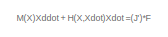
[diagram: root canvas - part 1/10, top center region]
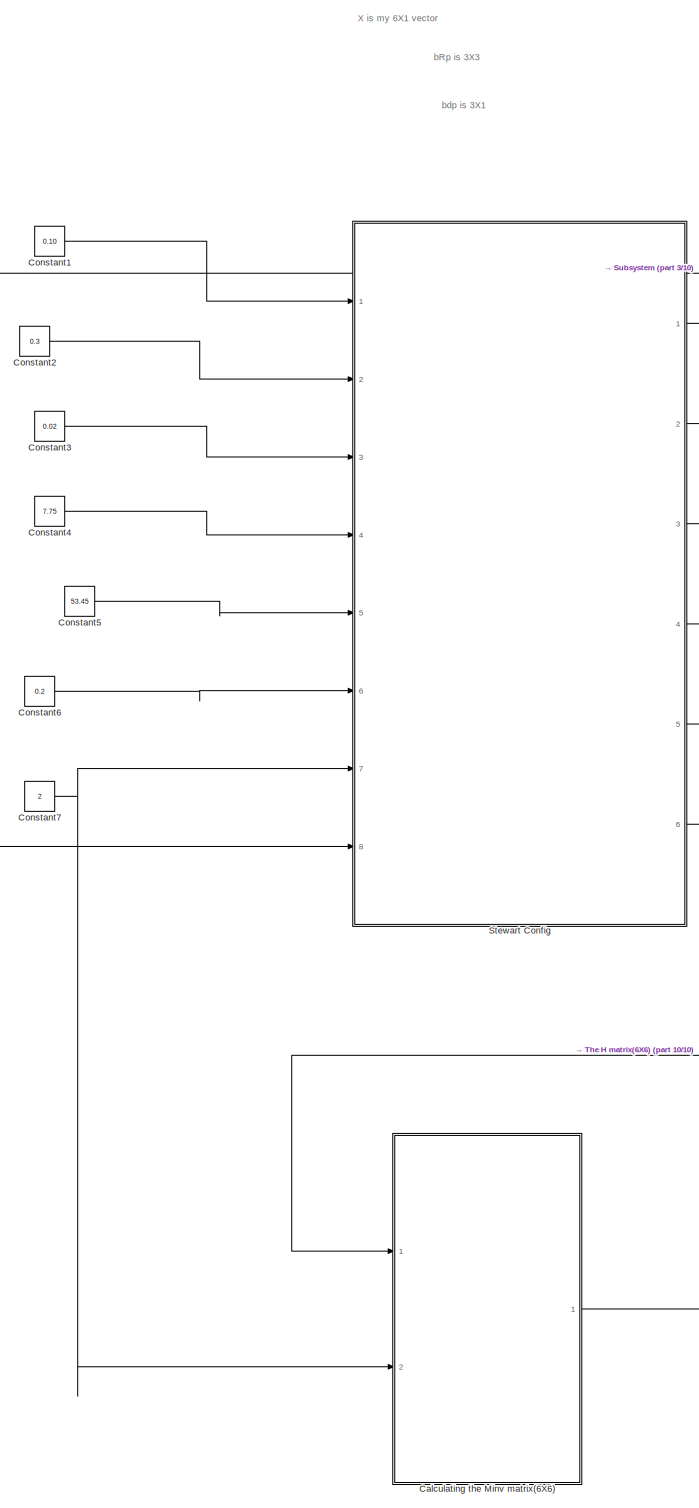
[diagram: root canvas - part 2/10, middle left region]
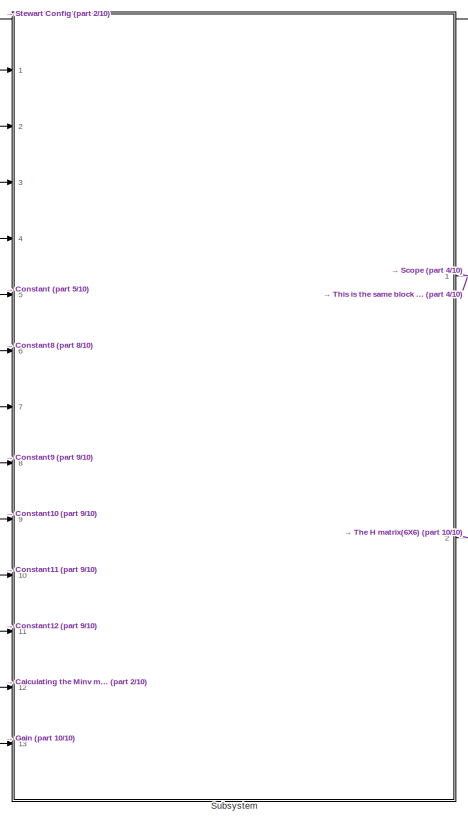
[diagram: root canvas - part 3/10, middle right region]
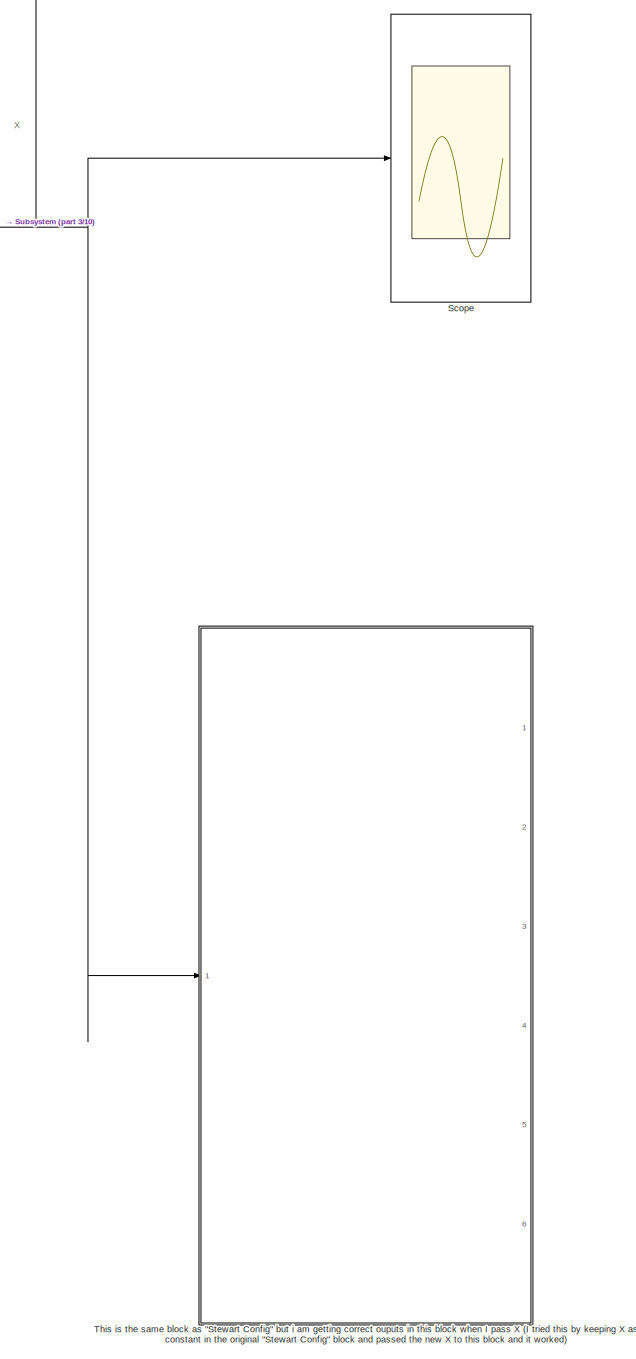
[diagram: root canvas - part 4/10, middle right region]
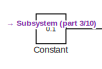
[diagram: root canvas - part 5/10, top center region]
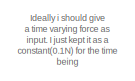
[diagram: root canvas - part 6/10, top left region]
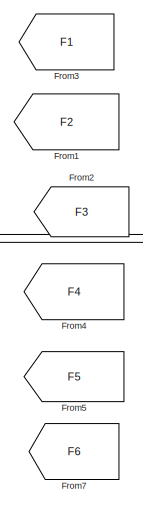
[diagram: root canvas - part 7/10, central region]
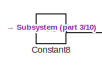
[diagram: root canvas - part 8/10, top center region]
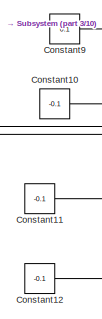
[diagram: root canvas - part 9/10, central region]
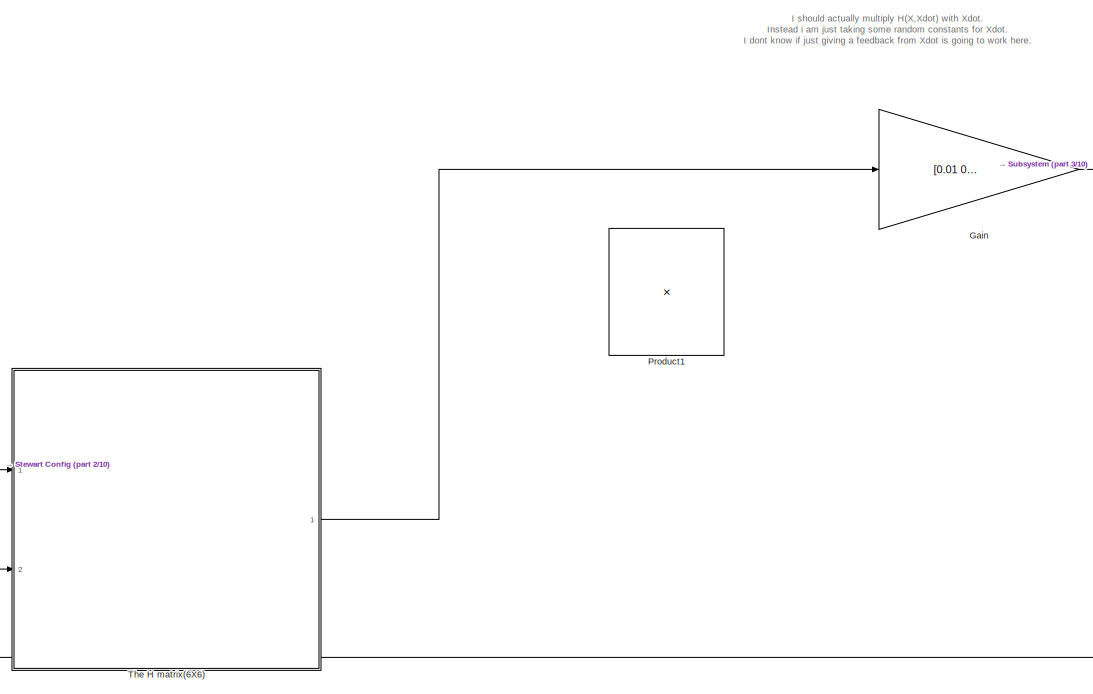
[diagram: root canvas - part 10/10, bottom center region]
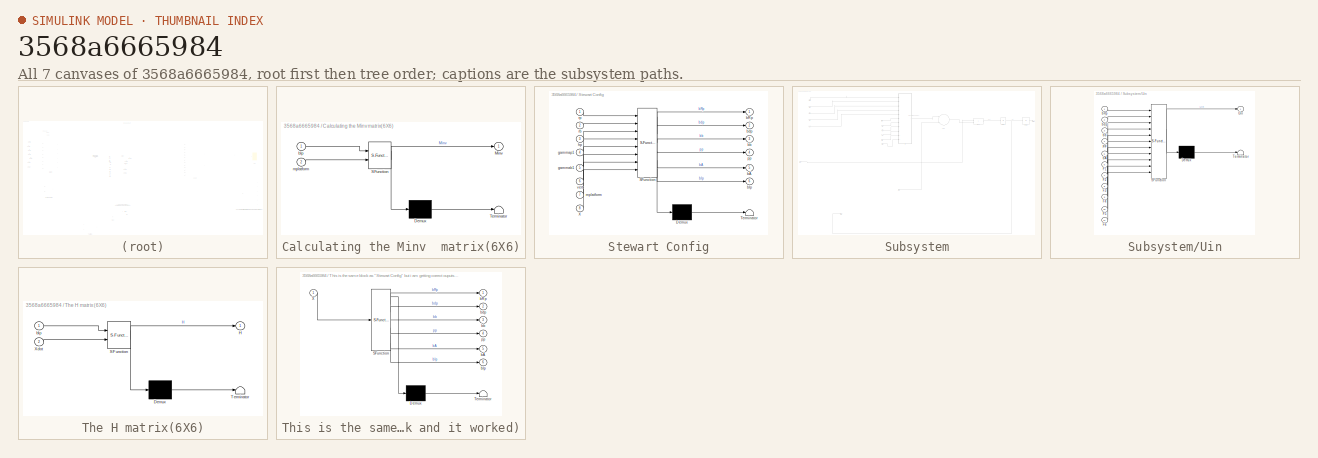
[diagram: thumbnail index - all 7 canvases of the model, root first then tree order]
MODEL slx_3568a6665984
KIND model
CONFIG AbsTol = auto
CONFIG FixedStep = auto
CONFIG MaxStep = auto
CONFIG MinStep = auto
CONFIG RelTol = 1e-3
CONFIG SampleTimeConstraint = Unconstrained
CONFIG Solver = ode45
CONFIG SolverMode = Auto
CONFIG SolverName = ode45
CONFIG StartTime = 0.0
CONFIG StopTime = 10.0
BLOCK [SubSystem] Calculating the Minv  matrix(6X6)
  ErrorFcn = Stateflow.Translate.translate
  PermitHierarchicalResolution = ExplicitOnly
  Ports = [2, 1]
  RequestExecContextInheritance = off
  SFBlockType = MATLAB Function
  TreatAsAtomicUnit = on
BLOCK [Demux] Calculating the Minv  matrix(6X6)/ Demux 
  Outputs = 1
  Ports = [1, 1]
BLOCK [S-Function] Calculating the Minv  matrix(6X6)/ SFunction 
  EnableBusSupport = on
  FunctionName = sf_sfun
  PortCounts = [2 2]
  Ports = [2, 2]
  Tag = Stateflow S-Function June30Simulink 4
BLOCK [Terminator] Calculating the Minv  matrix(6X6)/ Terminator 
BLOCK [Outport] Calculating the Minv  matrix(6X6)/Minv
  IconDisplay = Port number
BLOCK [Inport] Calculating the Minv  matrix(6X6)/bIp
  IconDisplay = Port number
BLOCK [Inport] Calculating the Minv  matrix(6X6)/mplatform
  IconDisplay = Port number
  Port = 2
BLOCK [Constant] Constant
  Value = 0.1
BLOCK [Constant] Constant1
  Value = 0.10
BLOCK [Constant] Constant10
  Value = -0.1
BLOCK [Constant] Constant11
  Value = -0.1
BLOCK [Constant] Constant12
  Value = -0.1
BLOCK [Constant] Constant2
  Value = 0.3
BLOCK [Constant] Constant3
  Value = 0.02
BLOCK [Constant] Constant4
  Value = 7.75
BLOCK [Constant] Constant5
  Value = 53.45
BLOCK [Constant] Constant6
  Value = 0.2
BLOCK [Constant] Constant7
  Value = 2
BLOCK [Constant] Constant8
  Value = 0.1
BLOCK [Constant] Constant9
  Value = 0.1
BLOCK [From] From1
  CloseFcn = tagdialog Close
  GotoTag = F2
BLOCK [From] From2
  CloseFcn = tagdialog Close
  GotoTag = F3
BLOCK [From] From3
  CloseFcn = tagdialog Close
  GotoTag = F1
BLOCK [From] From4
  CloseFcn = tagdialog Close
  GotoTag = F4
BLOCK [From] From5
  CloseFcn = tagdialog Close
  GotoTag = F5
BLOCK [From] From7
  CloseFcn = tagdialog Close
  GotoTag = F6
BLOCK [Gain] Gain
  Gain = [0.01 0.00 0 0.1 0.05 0.15]'
  Multiplication = Matrix(u*K)
  OutDataTypeStr = Inherit: Inherit via internal rule
  ParamDataTypeStr = Inherit: Inherit via internal rule
  SaturateOnIntegerOverflow = off
BLOCK [Product] Product1
  InputSameDT = off
  Multiplication = Matrix(*)
  OutDataTypeStr = Inherit: Inherit via internal rule
  Ports = [2, 1]
  RndMeth = Floor
  SaturateOnIntegerOverflow = off
BLOCK [Scope] Scope
  Floating = off
  NumInputPorts = 1
  Ports = [1]
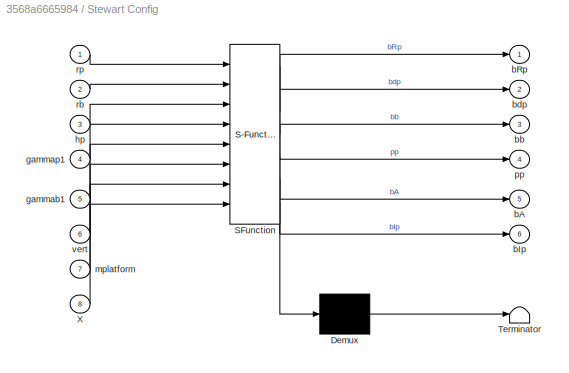
BLOCK [SubSystem] Stewart Config
  ErrorFcn = Stateflow.Translate.translate
  PermitHierarchicalResolution = ExplicitOnly
  Ports = [8, 6]
  RequestExecContextInheritance = off
  SFBlockType = MATLAB Function
  TreatAsAtomicUnit = on
BLOCK [Demux] Stewart Config/ Demux 
  Outputs = 1
  Ports = [1, 1]
BLOCK [S-Function] Stewart Config/ SFunction 
  EnableBusSupport = on
  FunctionName = sf_sfun
  PortCounts = [8 7]
  Ports = [8, 7]
  Tag = Stateflow S-Function June30Simulink 1
BLOCK [Terminator] Stewart Config/ Terminator 
BLOCK [Inport] Stewart Config/X
  IconDisplay = Port number
  Port = 8
BLOCK [Outport] Stewart Config/bA
  IconDisplay = Port number
  Port = 5
BLOCK [Outport] Stewart Config/bIp
  IconDisplay = Port number
  Port = 6
BLOCK [Outport] Stewart Config/bRp
  IconDisplay = Port number
BLOCK [Outport] Stewart Config/bb
  IconDisplay = Port number
  Port = 3
BLOCK [Outport] Stewart Config/bdp
  IconDisplay = Port number
  Port = 2
BLOCK [Inport] Stewart Config/gammab1
  IconDisplay = Port number
  Port = 5
BLOCK [Inport] Stewart Config/gammap1
  IconDisplay = Port number
  Port = 4
BLOCK [Inport] Stewart Config/hp
  IconDisplay = Port number
  Port = 3
BLOCK [Inport] Stewart Config/mplatform
  IconDisplay = Port number
  Port = 7
BLOCK [Outport] Stewart Config/pp
  IconDisplay = Port number
  Port = 4
BLOCK [Inport] Stewart Config/rb
  IconDisplay = Port number
  Port = 2
BLOCK [Inport] Stewart Config/rp
  IconDisplay = Port number
BLOCK [Inport] Stewart Config/vert
  IconDisplay = Port number
  Port = 6
BLOCK [SubSystem] Subsystem
  Ports = [13, 2]
  RequestExecContextInheritance = off
BLOCK [Inport] Subsystem/F1
  IconDisplay = Port number
  Port = 5
BLOCK [Inport] Subsystem/F2
  IconDisplay = Port number
  Port = 6
BLOCK [Inport] Subsystem/F3
  IconDisplay = Port number
  Port = 8
BLOCK [Inport] Subsystem/F4
  IconDisplay = Port number
  Port = 9
BLOCK [Inport] Subsystem/F5
  IconDisplay = Port number
  Port = 10
BLOCK [Inport] Subsystem/F6
  IconDisplay = Port number
  Port = 11
BLOCK [Inport] Subsystem/In12
  IconDisplay = Port number
  Port = 12
BLOCK [Inport] Subsystem/In13
  IconDisplay = Port number
  Port = 13
BLOCK [Integrator] Subsystem/Integrator
  Ports = [1, 1]
BLOCK [Integrator] Subsystem/Integrator1
  Ports = [1, 1]
BLOCK [Product] Subsystem/Product
  InputSameDT = off
  Multiplication = Matrix(*)
  OutDataTypeStr = Inherit: Inherit via internal rule
  Ports = [2, 1]
  RndMeth = Floor
  SaturateOnIntegerOverflow = off
BLOCK [Sum] Subsystem/Sum
  InputSameDT = off
  Inputs = |++
  OutDataTypeStr = Inherit: Inherit via internal rule
  Ports = [2, 1]
  SaturateOnIntegerOverflow = off
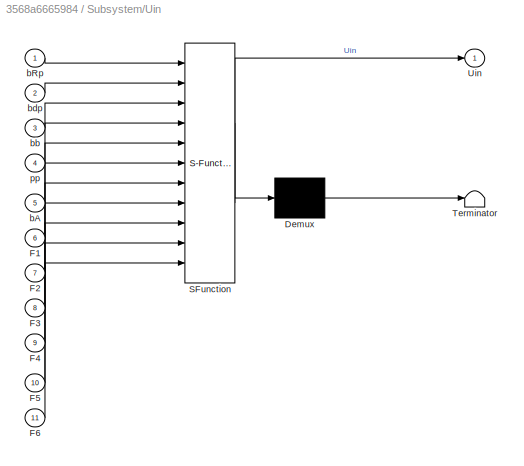
BLOCK [SubSystem] Subsystem/Uin
  ErrorFcn = Stateflow.Translate.translate
  PermitHierarchicalResolution = ExplicitOnly
  Ports = [11, 1]
  RequestExecContextInheritance = off
  SFBlockType = MATLAB Function
  TreatAsAtomicUnit = on
BLOCK [Demux] Subsystem/Uin/ Demux 
  Outputs = 1
  Ports = [1, 1]
BLOCK [S-Function] Subsystem/Uin/ SFunction 
  EnableBusSupport = on
  FunctionName = sf_sfun
  PortCounts = [11 2]
  Ports = [11, 2]
  Tag = Stateflow S-Function June30Simulink 3
BLOCK [Terminator] Subsystem/Uin/ Terminator 
BLOCK [Inport] Subsystem/Uin/F1
  IconDisplay = Port number
  Port = 6
BLOCK [Inport] Subsystem/Uin/F2
  IconDisplay = Port number
  Port = 7
BLOCK [Inport] Subsystem/Uin/F3
  IconDisplay = Port number
  Port = 8
BLOCK [Inport] Subsystem/Uin/F4
  IconDisplay = Port number
  Port = 9
BLOCK [Inport] Subsystem/Uin/F5
  IconDisplay = Port number
  Port = 10
BLOCK [Inport] Subsystem/Uin/F6
  IconDisplay = Port number
  Port = 11
BLOCK [Outport] Subsystem/Uin/Uin
  IconDisplay = Port number
BLOCK [Inport] Subsystem/Uin/bA
  IconDisplay = Port number
  Port = 5
BLOCK [Inport] Subsystem/Uin/bRp
  IconDisplay = Port number
BLOCK [Inport] Subsystem/Uin/bb
  IconDisplay = Port number
  Port = 3
BLOCK [Inport] Subsystem/Uin/bdp
  IconDisplay = Port number
  Port = 2
BLOCK [Inport] Subsystem/Uin/pp
  IconDisplay = Port number
  Port = 4
BLOCK [Outport] Subsystem/X(states)
  IconDisplay = Port number
BLOCK [Outport] Subsystem/Xdot
  IconDisplay = Port number
  Port = 2
BLOCK [Inport] Subsystem/bA
  IconDisplay = Port number
  Port = 7
BLOCK [Inport] Subsystem/bRp
  IconDisplay = Port number
BLOCK [Inport] Subsystem/bb
  IconDisplay = Port number
  Port = 3
BLOCK [Inport] Subsystem/bdp
  IconDisplay = Port number
  Port = 2
BLOCK [Inport] Subsystem/pp
  IconDisplay = Port number
  Port = 4
BLOCK [SubSystem] The H matrix(6X6)
  ErrorFcn = Stateflow.Translate.translate
  PermitHierarchicalResolution = ExplicitOnly
  Ports = [2, 1]
  RequestExecContextInheritance = off
  SFBlockType = MATLAB Function
  TreatAsAtomicUnit = on
BLOCK [Demux] The H matrix(6X6)/ Demux 
  Outputs = 1
  Ports = [1, 1]
BLOCK [S-Function] The H matrix(6X6)/ SFunction 
  EnableBusSupport = on
  FunctionName = sf_sfun
  PortCounts = [2 2]
  Ports = [2, 2]
  Tag = Stateflow S-Function June30Simulink 5
BLOCK [Terminator] The H matrix(6X6)/ Terminator 
BLOCK [Outport] The H matrix(6X6)/H
  IconDisplay = Port number
BLOCK [Inport] The H matrix(6X6)/Xdot
  IconDisplay = Port number
  Port = 2
BLOCK [Inport] The H matrix(6X6)/bIp
  IconDisplay = Port number
BLOCK [SubSystem] This is the same block as "Stewart Config" but i am getting correct ouputs in this block when I pass X (I tried this by keeping X as constant in the original "Stewart Config" block and passed the new X to this block and it worked)
  ErrorFcn = Stateflow.Translate.translate
  PermitHierarchicalResolution = ExplicitOnly
  Ports = [1, 6]
  RequestExecContextInheritance = off
  SFBlockType = MATLAB Function
  TreatAsAtomicUnit = on
BLOCK [Demux] This is the same block as "Stewart Config" but i am getting correct ouputs in this block when I pass X (I tried this by keeping X as constant in the original "Stewart Config" block and passed the new X to this block and it worked)/ Demux 
  Outputs = 1
  Ports = [1, 1]
BLOCK [S-Function] This is the same block as "Stewart Config" but i am getting correct ouputs in this block when I pass X (I tried this by keeping X as constant in the original "Stewart Config" block and passed the new X to this block and it worked)/ SFunction 
  EnableBusSupport = on
  FunctionName = sf_sfun
  PortCounts = [1 7]
  Ports = [1, 7]
  Tag = Stateflow S-Function June30Simulink 8
BLOCK [Terminator] This is the same block as "Stewart Config" but i am getting correct ouputs in this block when I pass X (I tried this by keeping X as constant in the original "Stewart Config" block and passed the new X to this block and it worked)/ Terminator 
BLOCK [Inport] This is the same block as "Stewart Config" but i am getting correct ouputs in this block when I pass X (I tried this by keeping X as constant in the original "Stewart Config" block and passed the new X to this block and it worked)/X
  IconDisplay = Port number
BLOCK [Outport] This is the same block as "Stewart Config" but i am getting correct ouputs in this block when I pass X (I tried this by keeping X as constant in the original "Stewart Config" block and passed the new X to this block and it worked)/bA
  IconDisplay = Port number
  Port = 5
BLOCK [Outport] This is the same block as "Stewart Config" but i am getting correct ouputs in this block when I pass X (I tried this by keeping X as constant in the original "Stewart Config" block and passed the new X to this block and it worked)/bIp
  IconDisplay = Port number
  Port = 6
BLOCK [Outport] This is the same block as "Stewart Config" but i am getting correct ouputs in this block when I pass X (I tried this by keeping X as constant in the original "Stewart Config" block and passed the new X to this block and it worked)/bRp
  IconDisplay = Port number
BLOCK [Outport] This is the same block as "Stewart Config" but i am getting correct ouputs in this block when I pass X (I tried this by keeping X as constant in the original "Stewart Config" block and passed the new X to this block and it worked)/bb
  IconDisplay = Port number
  Port = 3
BLOCK [Outport] This is the same block as "Stewart Config" but i am getting correct ouputs in this block when I pass X (I tried this by keeping X as constant in the original "Stewart Config" block and passed the new X to this block and it worked)/bdp
  IconDisplay = Port number
  Port = 2
BLOCK [Outport] This is the same block as "Stewart Config" but i am getting correct ouputs in this block when I pass X (I tried this by keeping X as constant in the original "Stewart Config" block and passed the new X to this block and it worked)/pp
  IconDisplay = Port number
  Port = 4
ANNOTATION (root): Ideally i should give a time varying force as input. I just kept it as a constant(0.1N) for the time being
ANNOTATION (root): I should actually multiply H(X,Xdot) with Xdot. Instead i am just taking some random constants for Xdot. I dont know if just giving a feedback from Xdot is going to work here.
ANNOTATION (root): M(X)Xddot + H(X,Xdot)Xdot =(J')*F
ANNOTATION (root): X is my 6X1 vector
ANNOTATION (root): X
ANNOTATION (root): bRp is 3X3
ANNOTATION (root): bdp is 3X1
ANNOTATION Subsystem: Sum
ANNOTATION Subsystem: This is my (J')*F : ( J is 6X6 and F is 6X1)
ANNOTATION Subsystem: Xddot
ANNOTATION Subsystem: Xdot
LINE Calculating the Minv  matrix(6X6):1 -> Subsystem:12
LINE Constant10:1 -> Subsystem:9
LINE Constant11:1 -> Subsystem:10
LINE Constant12:1 -> Subsystem:11
LINE Constant1:1 -> Stewart Config:1
LINE Constant2:1 -> Stewart Config:2
LINE Constant3:1 -> Stewart Config:3
LINE Constant4:1 -> Stewart Config:4
LINE Constant5:1 -> Stewart Config:5
LINE Constant6:1 -> Stewart Config:6
NET Constant7:1 -> Calculating the Minv  matrix(6X6):2, Stewart Config:7
LINE Constant8:1 -> Subsystem:6
LINE Constant9:1 -> Subsystem:8
LINE Constant:1 -> Subsystem:5
LINE Gain:1 -> Subsystem:13
LINE Stewart Config:1 -> Subsystem:1
LINE Stewart Config:2 -> Subsystem:2
LINE Stewart Config:3 -> Subsystem:3
LINE Stewart Config:4 -> Subsystem:4
LINE Stewart Config:5 -> Subsystem:7
NET Stewart Config:6 -> Calculating the Minv  matrix(6X6):1, The H matrix(6X6):1
LINE Subsystem/F1:1 -> Subsystem/Uin:6
LINE Subsystem/F2:1 -> Subsystem/Uin:7
LINE Subsystem/F3:1 -> Subsystem/Uin:8
LINE Subsystem/F4:1 -> Subsystem/Uin:9
LINE Subsystem/F5:1 -> Subsystem/Uin:10
LINE Subsystem/F6:1 -> Subsystem/Uin:11
LINE Subsystem/In12:1 -> Subsystem/Product:1
LINE Subsystem/In13:1 -> Subsystem/Sum:2
LINE Subsystem/Integrator1:1 -> Subsystem/X(states):1
NET Subsystem/Integrator:1 -> Subsystem/Integrator1:1, Subsystem/Xdot:1
LINE Subsystem/Product:1 -> Subsystem/Integrator:1
LINE Subsystem/Sum:1 -> Subsystem/Product:2
LINE Subsystem/Uin:1 -> Subsystem/Sum:1
LINE Subsystem/bA:1 -> Subsystem/Uin:5
LINE Subsystem/bRp:1 -> Subsystem/Uin:1
LINE Subsystem/bb:1 -> Subsystem/Uin:3
LINE Subsystem/bdp:1 -> Subsystem/Uin:2
LINE Subsystem/pp:1 -> Subsystem/Uin:4
NET Subsystem:1 -> Scope:1, Stewart Config:8, This is the same block as "Stewart Config" but i am getting correct ouputs in this block when I pass X (I tried this by keeping X as constant in the original "Stewart Config" block and passed the new X to this block and it worked):1
LINE Subsystem:2 -> The H matrix(6X6):2
LINE The H matrix(6X6):1 -> Gain:1
note: NET lines group one-source signal fan-out (src -> all destinations, sorted); 1:1 wires keep LINE
CHART Stewart Config states=1 transitions=1
  STATE_LABEL 'eML_blk_kernel()'
  STATE_LABEL 'SCRIPT:\nfunction [bRp,bdp,bb,pp,bA,bIp] = fcn(rp,rb,hp,gammap1,gammab1,vert,mplatform,X)\n%#codegen\n%The states that were chosen were X=[x,y,z,phi,theta,psi] and\n%X2=[xdot,ydot,zdot,p,q,r ]\n%Due to this a  trnasformation matrix must be added to transform the body\n%rates to Euler rates.\ngammap = [gammap1,120-gammap1, 120+gammap1, -120-gammap1,-120+gammap1,-gammap1];\ngammab = [gammab1,120-gammab1, 12...<+1767ch>'
CHART Subsystem/Uin states=1 transitions=1
  STATE_LABEL 'eML_blk_kernel()'
  STATE_LABEL "SCRIPT:\nfunction Uin = fcn(bRp,bdp,bb,pp,bA,F1,F2,F3,F4,F5,F6)\n%#codegen\n    g=9.81;\n    G=[0,0,-g]';\n    Fvec=zeros(3,6);\n    %We are going to add g in vector form to the input force\n   %Uin=zeros(6,1);\n    %for j=1:6\n     %  Fvec(:,j)=F(j,a)*bA(:,j);\n    %end\n    Fvec(:,1)=F1*bA(:,1);\n    Fvec(:,2)=F2*bA(:,2);\n    Fvec(:,3)=F3*bA(:,3);\n    Fvec(:,4)=F4*bA(:,4);\n    Fvec(:,5)=F5*bA(:,5);\n    Fvec...<+683ch>"
CHART Calculating the Minv  matrix(6X6) states=1 transitions=1
  STATE_LABEL 'eML_blk_kernel()'
  STATE_LABEL 'SCRIPT:\nfunction Minv = fcn(bIp,mplatform)\n%#codegen\n%Minv=zeros(6,6);\nm=mplatform*(eye(3));\n\nz=zeros(3,3);\nM=zeros(6,6);\nMinv=zeros(6,6);\nM=[m,z;z,bIp];\nMinv=inv(M);\nend'
CHART The H matrix(6X6) states=1 transitions=1
  STATE_LABEL 'eML_blk_kernel()'
  STATE_LABEL 'SCRIPT:\nfunction H = fcn(bIp,Xdot)\n%#codegen\n%H=zeros(6,6);\nbWp = [Xdot(4,1) ; Xdot(5,1) ; Xdot(6,1)] ;\n%bWp=[0.1;0.05;0.15];\nbWpskew=zeros(3,3);\nbWpskew=[ 0 , -1*bWp(3,1) , bWp(2,1) ; \n         bWp(3,1) , 0 , -1*bWp(1,1)  ;\n         -1*bWp(2,1), bWp(1,1), 0 ];\n     z=zeros(3,3);\n     h=zeros(3,3);\n     h= bWpskew*bIp;                             %WxI \n    H=[z,z;z,h];\nend'
CHART This is the same block as "Stewart Config" but i am getting correct ouputs in this block when I pass X
(I tried this by keeping X as constant in the original "Stewart Config" block and passed the new X to this block 
and it worked) states=1 transitions=1
  STATE_LABEL 'eML_blk_kernel()'
  STATE_LABEL 'SCRIPT:\nfunction [bRp,bdp,bb,pp,bA,bIp] = fcn(X)\n%#codegen\n%The states that were chosen were X=[x,y,z,phi,theta,psi] and\n%X2=[xdot,ydot,zdot,p,q,r ]\n%Due to this a  trnasformation matrix must be added to transform the body\n%rates to Euler rates.\nrp=0.15;\nrb=0.30;\nhp=0.01;\ngammap1=7.75;\ngammab1=53.45;\nvert=0.2;\nmplatform=2;\n\ngammap = [gammap1,120-gammap1, 120+gammap1, -120-gammap1,-120+gammap1,-gam...<+1738ch>'
